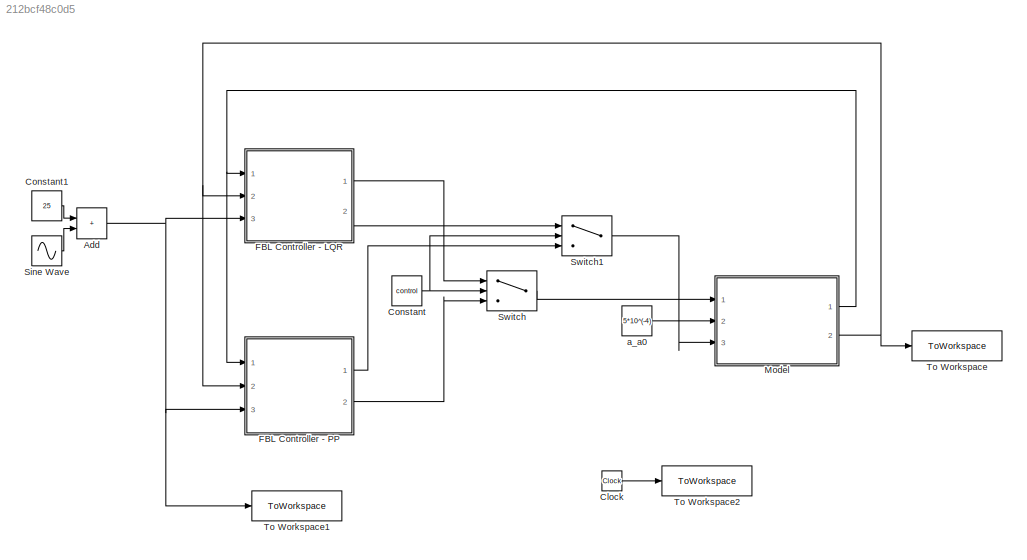
MODEL slx_212bcf48c0d5
KIND model
CONFIG AbsTol = auto
CONFIG EnableMultiTasking = off
CONFIG FixedStep = auto
CONFIG MaxStep = auto
CONFIG MinStep = auto
CONFIG RelTol = 1e-3
CONFIG SampleTimeConstraint = Unconstrained
CONFIG SolverName = VariableStepAuto
CONFIG StartTime = 0.0
CONFIG StopTime = 10
BLOCK [Sum] Add
  IconShape = rectangular
  Ports = [2, 1]
BLOCK [Clock] Clock
BLOCK [Constant] Constant
  Value = control
BLOCK [Constant] Constant1
  Value = 25
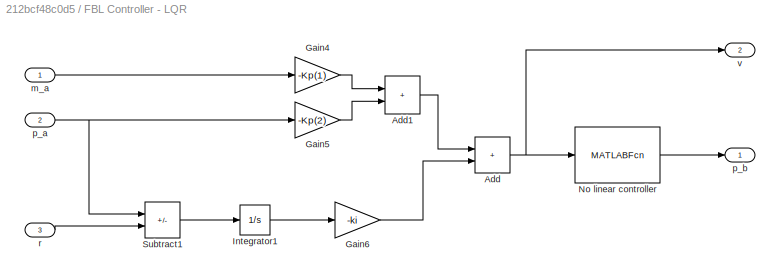
BLOCK [SubSystem] FBL Controller - LQR
  NameLocation = top
  Ports = [3, 2]
  RequestExecContextInheritance = off
BLOCK [Sum] FBL Controller - LQR/Add
  IconShape = rectangular
  Ports = [2, 1]
BLOCK [Sum] FBL Controller - LQR/Add1
  IconShape = rectangular
  Ports = [2, 1]
BLOCK [Gain] FBL Controller - LQR/Gain4
  Gain = -Kp(1)
  NameLocation = top
BLOCK [Gain] FBL Controller - LQR/Gain5
  Gain = -Kp(2)
  NameLocation = top
BLOCK [Gain] FBL Controller - LQR/Gain6
  Gain = -ki
  NameLocation = top
BLOCK [Integrator] FBL Controller - LQR/Integrator1
  InitialCondition = -30
  NameLocation = top
  Ports = [1, 1]
BLOCK [MATLABFcn] FBL Controller - LQR/No linear controller
  MATLABFcn = transcriptional_regulation_fbl_controller
  NameLocation = top
  OutputDimensions = 1
  Ports = [1, 1]
BLOCK [Sum] FBL Controller - LQR/Subtract1
  IconShape = rectangular
  Inputs = +-
  NameLocation = top
  Ports = [2, 1]
BLOCK [Inport] FBL Controller - LQR/m_a
BLOCK [Inport] FBL Controller - LQR/p_a
  Port = 2
BLOCK [Outport] FBL Controller - LQR/p_b
BLOCK [Inport] FBL Controller - LQR/r
  Port = 3
BLOCK [Outport] FBL Controller - LQR/v
  Port = 2
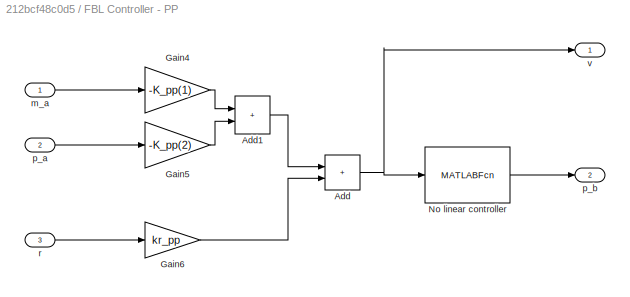
BLOCK [SubSystem] FBL Controller - PP
  NameLocation = top
  Ports = [3, 2]
  RequestExecContextInheritance = off
BLOCK [Sum] FBL Controller - PP/Add
  IconShape = rectangular
  Ports = [2, 1]
BLOCK [Sum] FBL Controller - PP/Add1
  IconShape = rectangular
  Ports = [2, 1]
BLOCK [Gain] FBL Controller - PP/Gain4
  Gain = -K_pp(1)
  NameLocation = top
BLOCK [Gain] FBL Controller - PP/Gain5
  Gain = -K_pp(2)
  NameLocation = top
BLOCK [Gain] FBL Controller - PP/Gain6
  Gain = kr_pp
  NameLocation = top
BLOCK [MATLABFcn] FBL Controller - PP/No linear controller
  MATLABFcn = transcriptional_regulation_fbl_controller
  NameLocation = top
  OutputDimensions = 1
  Ports = [1, 1]
BLOCK [Inport] FBL Controller - PP/m_a
BLOCK [Inport] FBL Controller - PP/p_a
  Port = 2
BLOCK [Outport] FBL Controller - PP/p_b
  Port = 2
BLOCK [Inport] FBL Controller - PP/r
  Port = 3
BLOCK [Outport] FBL Controller - PP/v
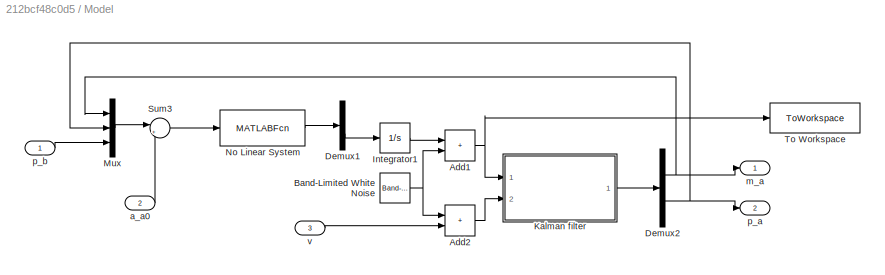
BLOCK [SubSystem] Model
  NameLocation = top
  Ports = [3, 2]
  RequestExecContextInheritance = off
BLOCK [Sum] Model/Add1
  IconShape = rectangular
  Ports = [2, 1]
BLOCK [Sum] Model/Add2
  IconShape = rectangular
  Ports = [2, 1]
BLOCK [Reference] Model/Band-Limited White Noise  REF=simulink/Sources/Band-Limited
White Noise
  Ports = [0, 1]
  SourceBlock = simulink/Sources/Band-Limited\nWhite Noise
  SourceProductBaseCode = SL
  SourceType = Band-Limited White Noise.
BLOCK [Demux] Model/Demux1
  Outputs = 2
  Ports = [1, 2]
BLOCK [Demux] Model/Demux2
  Outputs = 2
  Ports = [1, 2]
BLOCK [Integrator] Model/Integrator1
  InitialCondition = 30
  Ports = [1, 1]
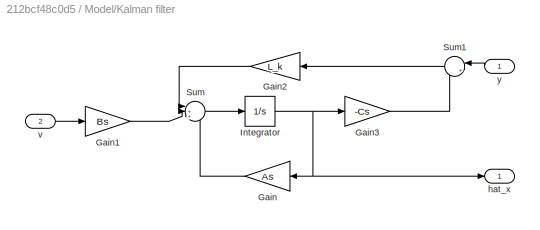
BLOCK [SubSystem] Model/Kalman filter
  NameLocation = top
  Ports = [2, 1]
  RequestExecContextInheritance = off
BLOCK [Gain] Model/Kalman filter/Gain
  Gain = As
  Multiplication = Matrix(K*u)
BLOCK [Gain] Model/Kalman filter/Gain1
  Gain = Bs
  Multiplication = Matrix(K*u)
BLOCK [Gain] Model/Kalman filter/Gain2
  Gain = L_k
  Multiplication = Matrix(K*u)
BLOCK [Gain] Model/Kalman filter/Gain3
  Gain = -Cs
  Multiplication = Matrix(K*u)
BLOCK [Integrator] Model/Kalman filter/Integrator
  InitialCondition = 30
  Ports = [1, 1]
BLOCK [Sum] Model/Kalman filter/Sum
  Inputs = |+++
  Ports = [3, 1]
BLOCK [Sum] Model/Kalman filter/Sum1
  Inputs = |++
  Ports = [2, 1]
BLOCK [Outport] Model/Kalman filter/hat_x
BLOCK [Inport] Model/Kalman filter/v
  Port = 2
BLOCK [Inport] Model/Kalman filter/y
BLOCK [Mux] Model/Mux
  DisplayOption = bar
  Inputs = 3
  Ports = [3, 1]
BLOCK [MATLABFcn] Model/No Linear System
  MATLABFcn = transcriptional_regulation_model
  NameLocation = top
  OutputDimensions = 2
  Ports = [1, 1]
BLOCK [Sum] Model/Sum3
  Inputs = |++
  Ports = [2, 1]
BLOCK [ToWorkspace] Model/To Workspace
  FixptAsFi = on
  MaxDataPoints = inf
  Ports = [1]
  SampleTime = -1
  VariableName = p_a_nofilter
BLOCK [Inport] Model/a_a0
  Port = 2
BLOCK [Outport] Model/m_a
BLOCK [Outport] Model/p_a
  Port = 2
BLOCK [Inport] Model/p_b
BLOCK [Inport] Model/v
  Port = 3
BLOCK [Sin] Sine Wave
  Frequency = 0.01
  Ports = [0, 1]
  SampleTime = 0
BLOCK [Switch] Switch
  Criteria = u2 > Threshold
  InputSameDT = off
  SaturateOnIntegerOverflow = off
  Threshold = 0.5
BLOCK [Switch] Switch1
  Criteria = u2 > Threshold
  InputSameDT = off
  SaturateOnIntegerOverflow = off
  Threshold = 0.5
BLOCK [ToWorkspace] To Workspace
  FixptAsFi = on
  MaxDataPoints = inf
  Ports = [1]
  SampleTime = -1
  VariableName = p_a
BLOCK [ToWorkspace] To Workspace1
  FixptAsFi = on
  MaxDataPoints = inf
  Ports = [1]
  SampleTime = -1
  VariableName = r
BLOCK [ToWorkspace] To Workspace2
  FixptAsFi = on
  MaxDataPoints = inf
  Ports = [1]
  SampleTime = -1
  VariableName = t
BLOCK [Constant] a_a0
  Value = 5*10^(-4)
NET Add:1 -> FBL Controller - LQR:3, FBL Controller - PP:3, To Workspace1:1
LINE Clock:1 -> To Workspace2:1
LINE Constant1:1 -> Add:1
NET Constant:1 -> Switch1:2, Switch:2
LINE FBL Controller - LQR/Add1:1 -> FBL Controller - LQR/Add:1
NET FBL Controller - LQR/Add:1 -> FBL Controller - LQR/No linear controller:1, FBL Controller - LQR/v:1
LINE FBL Controller - LQR/Gain4:1 -> FBL Controller - LQR/Add1:1
LINE FBL Controller - LQR/Gain5:1 -> FBL Controller - LQR/Add1:2
LINE FBL Controller - LQR/Gain6:1 -> FBL Controller - LQR/Add:2
LINE FBL Controller - LQR/Integrator1:1 -> FBL Controller - LQR/Gain6:1
LINE FBL Controller - LQR/No linear controller:1 -> FBL Controller - LQR/p_b:1
LINE FBL Controller - LQR/Subtract1:1 -> FBL Controller - LQR/Integrator1:1
LINE FBL Controller - LQR/m_a:1 -> FBL Controller - LQR/Gain4:1
NET FBL Controller - LQR/p_a:1 -> FBL Controller - LQR/Gain5:1, FBL Controller - LQR/Subtract1:1
LINE FBL Controller - LQR/r:1 -> FBL Controller - LQR/Subtract1:2
LINE FBL Controller - LQR:1 -> Switch:1
LINE FBL Controller - LQR:2 -> Switch1:1
LINE FBL Controller - PP/Add1:1 -> FBL Controller - PP/Add:1
NET FBL Controller - PP/Add:1 -> FBL Controller - PP/No linear controller:1, FBL Controller - PP/v:1
LINE FBL Controller - PP/Gain4:1 -> FBL Controller - PP/Add1:1
LINE FBL Controller - PP/Gain5:1 -> FBL Controller - PP/Add1:2
LINE FBL Controller - PP/Gain6:1 -> FBL Controller - PP/Add:2
LINE FBL Controller - PP/No linear controller:1 -> FBL Controller - PP/p_b:1
LINE FBL Controller - PP/m_a:1 -> FBL Controller - PP/Gain4:1
LINE FBL Controller - PP/p_a:1 -> FBL Controller - PP/Gain5:1
LINE FBL Controller - PP/r:1 -> FBL Controller - PP/Gain6:1
LINE FBL Controller - PP:1 -> Switch1:3
LINE FBL Controller - PP:2 -> Switch:3
NET Model/Add1:1 -> Model/Kalman filter:1, Model/To Workspace:1
LINE Model/Add2:1 -> Model/Kalman filter:2
NET Model/Band-Limited White Noise:1 -> Model/Add1:2, Model/Add2:1
LINE Model/Demux1:2 -> Model/Integrator1:1
NET Model/Demux2:1 -> Model/Mux:1, Model/m_a:1
NET Model/Demux2:2 -> Model/Mux:2, Model/p_a:1
LINE Model/Integrator1:1 -> Model/Add1:1
LINE Model/Kalman filter/Gain1:1 -> Model/Kalman filter/Sum:2
LINE Model/Kalman filter/Gain2:1 -> Model/Kalman filter/Sum:1
LINE Model/Kalman filter/Gain3:1 -> Model/Kalman filter/Sum1:2
LINE Model/Kalman filter/Gain:1 -> Model/Kalman filter/Sum:3
NET Model/Kalman filter/Integrator:1 -> Model/Kalman filter/Gain3:1, Model/Kalman filter/Gain:1, Model/Kalman filter/hat_x:1
LINE Model/Kalman filter/Sum1:1 -> Model/Kalman filter/Gain2:1
LINE Model/Kalman filter/Sum:1 -> Model/Kalman filter/Integrator:1
LINE Model/Kalman filter/v:1 -> Model/Kalman filter/Gain1:1
LINE Model/Kalman filter/y:1 -> Model/Kalman filter/Sum1:1
LINE Model/Kalman filter:1 -> Model/Demux2:1
LINE Model/Mux:1 -> Model/Sum3:1
LINE Model/No Linear System:1 -> Model/Demux1:1
LINE Model/Sum3:1 -> Model/No Linear System:1
LINE Model/a_a0:1 -> Model/Sum3:2
LINE Model/p_b:1 -> Model/Mux:3
LINE Model/v:1 -> Model/Add2:2
NET Model:1 -> FBL Controller - LQR:1, FBL Controller - PP:1
NET Model:2 -> FBL Controller - LQR:2, FBL Controller - PP:2, To Workspace:1
LINE Sine Wave:1 -> Add:2
LINE Switch1:1 -> Model:3
LINE Switch:1 -> Model:1
LINE a_a0:1 -> Model:2
note: NET lines group one-source signal fan-out (src -> all destinations, sorted); 1:1 wires keep LINE
